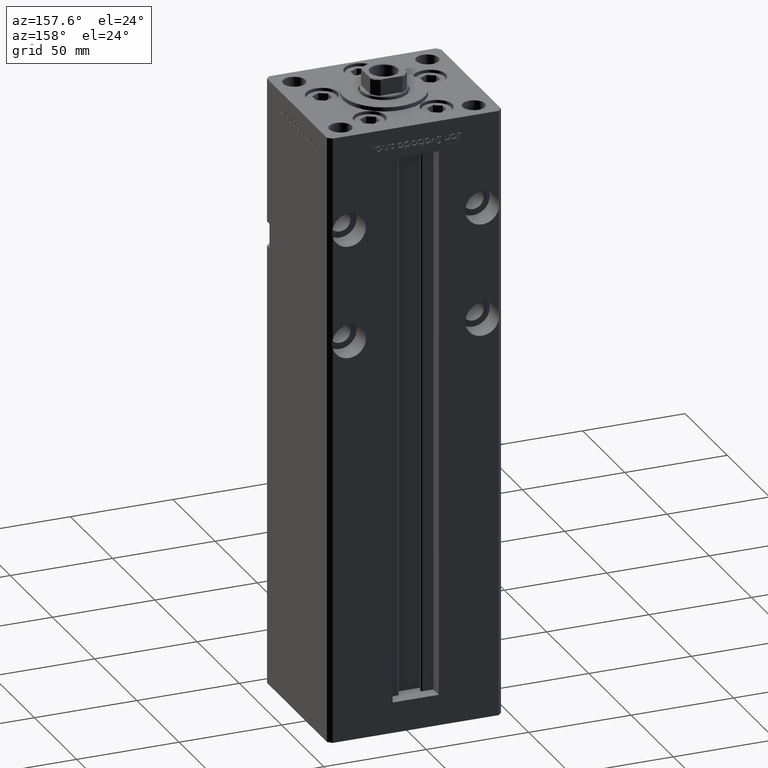
[diagram: clean part render]
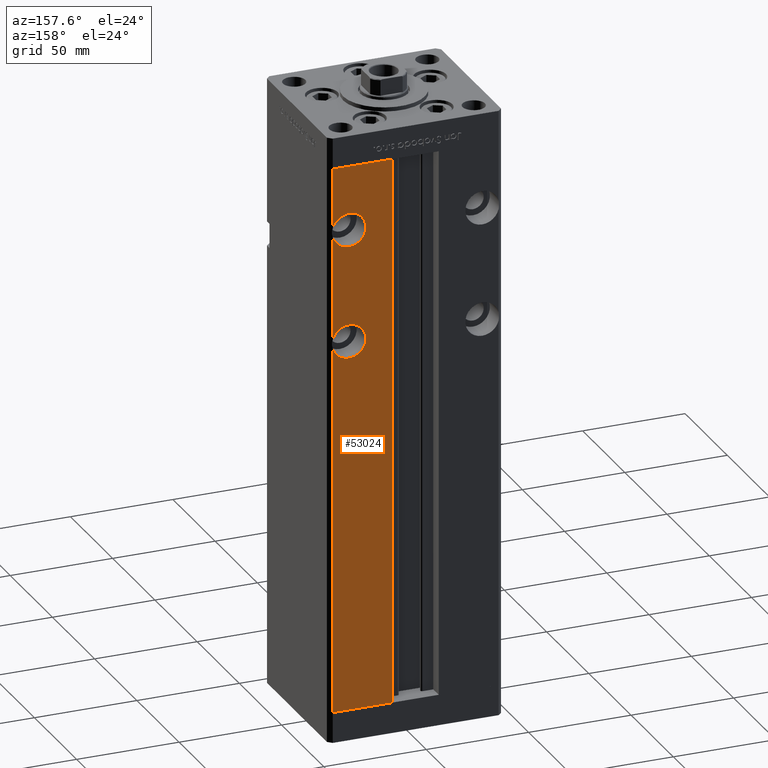
[diagram: same view with one face highlighted and labeled with its STEP entity id]
A machine part, auxiliary view. The second image highlights one B-rep face of the part: STEP entity #53024.
In plain terms, the highlighted planar face has unit normal (0, -1, 0).
Its self-contained STEP definition (entity closure, byte-faithful):
#370 = FACE_OUTER_BOUND ( 'NONE', #24508, .T. ) ;
#2520 = VECTOR ( 'NONE', #51217, 1000.000000000000000 ) ;
#3019 = ORIENTED_EDGE ( 'NONE', *, *, #19568, .F. ) ;
#3032 = CARTESIAN_POINT ( 'NONE',  ( 11.24999999999999822, 37.50000000000000000, 0.000000000000000000 ) ) ;
#3557 = CIRCLE ( 'NONE', #29319, 8.250000000000007105 ) ;
#4146 = EDGE_CURVE ( 'NONE', #35977, #35408, #26374, .T. ) ;
#4220 = CARTESIAN_POINT ( 'NONE',  ( 40.50000000000000711, 37.50000000000000000, 234.9844355629253698 ) ) ;
#4246 = VERTEX_POINT ( 'NONE', #35028 ) ;
#4905 = DIRECTION ( 'NONE',  ( 0.000000000000000000, -1.000000000000000000, 0.000000000000000000 ) ) ;
#5446 = CARTESIAN_POINT ( 'NONE',  ( -11.24999999999999822, 37.50000000000000000, 268.5000000000000000 ) ) ;
#5642 = VERTEX_POINT ( 'NONE', #4220 ) ;
#7545 = CIRCLE ( 'NONE', #45344, 8.250000000000007105 ) ;
#8544 = VERTEX_POINT ( 'NONE', #18215 ) ;
#9172 = AXIS2_PLACEMENT_3D ( 'NONE', #21890, #50915, #37479 ) ;
#9290 = CARTESIAN_POINT ( 'NONE',  ( -11.24999999999999822, 37.50000000000000000, 0.000000000000000000 ) ) ;
#10172 = ORIENTED_EDGE ( 'NONE', *, *, #43835, .F. ) ;
#10382 = EDGE_CURVE ( 'NONE', #4246, #34389, #34815, .T. ) ;
#10632 = CARTESIAN_POINT ( 'NONE',  ( 32.50000000000000000, 37.50000000000000000, 173.7500000000000284 ) ) ;
#10752 = EDGE_CURVE ( 'NONE', #34389, #46527, #40118, .T. ) ;
#10849 = DIRECTION ( 'NONE',  ( 0.000000000000000000, 0.000000000000000000, 1.000000000000000000 ) ) ;
#11786 = LINE ( 'NONE', #51866, #31745 ) ;
#11797 = ORIENTED_EDGE ( 'NONE', *, *, #4146, .F. ) ;
#12369 = DIRECTION ( 'NONE',  ( 0.000000000000000000, 1.000000000000000000, 0.000000000000000000 ) ) ;
#12975 = DIRECTION ( 'NONE',  ( 0.000000000000000000, -0.000000000000000000, -1.000000000000000000 ) ) ;
#16008 = CARTESIAN_POINT ( 'NONE',  ( 11.24999999999999112, 37.50000000000000000, 268.5000000000000000 ) ) ;
#16361 = AXIS2_PLACEMENT_3D ( 'NONE', #21470, #29021, #45401 ) ;
#17547 = EDGE_CURVE ( 'NONE', #25732, #31072, #44690, .T. ) ;
#17556 = LINE ( 'NONE', #18609, #43764 ) ;
#17677 = CARTESIAN_POINT ( 'NONE',  ( 40.50000000000000711, 37.50000000000000000, 239.0155644370746586 ) ) ;
#17723 = CIRCLE ( 'NONE', #36618, 8.250000000000007105 ) ;
#17867 = ORIENTED_EDGE ( 'NONE', *, *, #10752, .T. ) ;
#18128 = AXIS2_PLACEMENT_3D ( 'NONE', #5446, #4905, #12975 ) ;
#18215 = CARTESIAN_POINT ( 'NONE',  ( 32.50000000000000000, 37.50000000000000000, 190.2500000000000284 ) ) ;
#18609 = CARTESIAN_POINT ( 'NONE',  ( 40.50000000000000711, 37.50000000000000000, 268.5000000000000000 ) ) ;
#18782 = CARTESIAN_POINT ( 'NONE',  ( 32.50000000000000000, 37.50000000000000000, 182.0000000000000284 ) ) ;
#18878 = EDGE_CURVE ( 'NONE', #5642, #28079, #3557, .T. ) ;
#19460 = CARTESIAN_POINT ( 'NONE',  ( 40.50000000000000711, 37.50000000000000000, 184.0155644370746302 ) ) ;
#19568 = EDGE_CURVE ( 'NONE', #28079, #35977, #24173, .T. ) ;
#21178 = ORIENTED_EDGE ( 'NONE', *, *, #49360, .T. ) ;
#21470 = CARTESIAN_POINT ( 'NONE',  ( 32.50000000000000000, 37.50000000000000000, 182.0000000000000284 ) ) ;
#21779 = DIRECTION ( 'NONE',  ( 0.000000000000000000, 0.000000000000000000, 1.000000000000000000 ) ) ;
#21890 = CARTESIAN_POINT ( 'NONE',  ( 32.50000000000000000, 37.50000000000000000, 237.0000000000000284 ) ) ;
#22528 = CARTESIAN_POINT ( 'NONE',  ( 32.50000000000000000, 37.50000000000000000, 182.0000000000000284 ) ) ;
#22551 = VECTOR ( 'NONE', #33269, 1000.000000000000000 ) ;
#23047 = CARTESIAN_POINT ( 'NONE',  ( 32.50000000000000000, 37.50000000000000000, 228.7500000000000000 ) ) ;
#23437 = ORIENTED_EDGE ( 'NONE', *, *, #47541, .T. ) ;
#23686 = EDGE_CURVE ( 'NONE', #46527, #52869, #49933, .T. ) ;
#24173 = CIRCLE ( 'NONE', #30171, 8.250000000000007105 ) ;
#24508 = EDGE_LOOP ( 'NONE', ( #23437, #36332, #10172, #33443, #21178, #30229, #17867, #50293, #37467, #11797, #3019, #39261 ) ) ;
#25732 = VERTEX_POINT ( 'NONE', #38228 ) ;
#26374 = CIRCLE ( 'NONE', #9172, 8.250000000000007105 ) ;
#27519 = LINE ( 'NONE', #28578, #39802 ) ;
#28079 = VERTEX_POINT ( 'NONE', #23047 ) ;
#28578 = CARTESIAN_POINT ( 'NONE',  ( 40.50000000000000711, 37.50000000000000000, 268.5000000000000000 ) ) ;
#29021 = DIRECTION ( 'NONE',  ( 0.000000000000000000, 1.000000000000000000, -0.000000000000000000 ) ) ;
#29319 = AXIS2_PLACEMENT_3D ( 'NONE', #41407, #12369, #21779 ) ;
#30171 = AXIS2_PLACEMENT_3D ( 'NONE', #35865, #39363, #10849 ) ;
#30229 = ORIENTED_EDGE ( 'NONE', *, *, #10382, .T. ) ;
#31072 = VERTEX_POINT ( 'NONE', #10632 ) ;
#31545 = EDGE_CURVE ( 'NONE', #52869, #35408, #27519, .T. ) ;
#31745 = VECTOR ( 'NONE', #35736, 1000.000000000000000 ) ;
#32503 = DIRECTION ( 'NONE',  ( 0.000000000000000000, 0.000000000000000000, -1.000000000000000000 ) ) ;
#33269 = DIRECTION ( 'NONE',  ( 1.000000000000000000, 0.000000000000000000, 0.000000000000000000 ) ) ;
#33443 = ORIENTED_EDGE ( 'NONE', *, *, #17547, .F. ) ;
#33831 = DIRECTION ( 'NONE',  ( 0.000000000000000000, 0.000000000000000000, -1.000000000000000000 ) ) ;
#34389 = VERTEX_POINT ( 'NONE', #36724 ) ;
#34815 = LINE ( 'NONE', #9290, #2520 ) ;
#35028 = CARTESIAN_POINT ( 'NONE',  ( 40.50000000000000711, 37.50000000000000000, 0.000000000000000000 ) ) ;
#35408 = VERTEX_POINT ( 'NONE', #17677 ) ;
#35736 = DIRECTION ( 'NONE',  ( -0.000000000000000000, -0.000000000000000000, -1.000000000000000000 ) ) ;
#35865 = CARTESIAN_POINT ( 'NONE',  ( 32.50000000000000000, 37.50000000000000000, 237.0000000000000284 ) ) ;
#35977 = VERTEX_POINT ( 'NONE', #39520 ) ;
#36332 = ORIENTED_EDGE ( 'NONE', *, *, #39167, .F. ) ;
#36618 = AXIS2_PLACEMENT_3D ( 'NONE', #22528, #50764, #33831 ) ;
#36724 = CARTESIAN_POINT ( 'NONE',  ( 11.24999999999999822, 37.50000000000000000, 0.000000000000000000 ) ) ;
#37467 = ORIENTED_EDGE ( 'NONE', *, *, #31545, .T. ) ;
#37479 = DIRECTION ( 'NONE',  ( 0.000000000000000000, 0.000000000000000000, 1.000000000000000000 ) ) ;
#38228 = CARTESIAN_POINT ( 'NONE',  ( 40.50000000000000711, 37.50000000000000000, 179.9844355629254267 ) ) ;
#38591 = VECTOR ( 'NONE', #52227, 1000.000000000000000 ) ;
#39167 = EDGE_CURVE ( 'NONE', #8544, #50707, #17723, .T. ) ;
#39261 = ORIENTED_EDGE ( 'NONE', *, *, #18878, .F. ) ;
#39363 = DIRECTION ( 'NONE',  ( 0.000000000000000000, 1.000000000000000000, 0.000000000000000000 ) ) ;
#39520 = CARTESIAN_POINT ( 'NONE',  ( 32.50000000000000000, 37.50000000000000000, 245.2500000000000284 ) ) ;
#39802 = VECTOR ( 'NONE', #43910, 1000.000000000000000 ) ;
#40118 = LINE ( 'NONE', #3032, #38591 ) ;
#41085 = DIRECTION ( 'NONE',  ( 0.000000000000000000, 1.000000000000000000, -0.000000000000000000 ) ) ;
#41407 = CARTESIAN_POINT ( 'NONE',  ( 32.50000000000000000, 37.50000000000000000, 237.0000000000000284 ) ) ;
#43077 = DIRECTION ( 'NONE',  ( -0.000000000000000000, -0.000000000000000000, -1.000000000000000000 ) ) ;
#43764 = VECTOR ( 'NONE', #43077, 1000.000000000000000 ) ;
#43835 = EDGE_CURVE ( 'NONE', #31072, #8544, #7545, .T. ) ;
#43910 = DIRECTION ( 'NONE',  ( -0.000000000000000000, -0.000000000000000000, -1.000000000000000000 ) ) ;
#44690 = CIRCLE ( 'NONE', #16361, 8.250000000000007105 ) ;
#45108 = CARTESIAN_POINT ( 'NONE',  ( -11.24999999999999822, 37.50000000000000000, 268.5000000000000000 ) ) ;
#45344 = AXIS2_PLACEMENT_3D ( 'NONE', #18782, #41085, #32503 ) ;
#45401 = DIRECTION ( 'NONE',  ( 0.000000000000000000, 0.000000000000000000, -1.000000000000000000 ) ) ;
#46527 = VERTEX_POINT ( 'NONE', #16008 ) ;
#47541 = EDGE_CURVE ( 'NONE', #5642, #50707, #11786, .T. ) ;
#49360 = EDGE_CURVE ( 'NONE', #25732, #4246, #17556, .T. ) ;
#49822 = PLANE ( 'NONE',  #18128 ) ;
#49933 = LINE ( 'NONE', #45108, #22551 ) ;
#50293 = ORIENTED_EDGE ( 'NONE', *, *, #23686, .T. ) ;
#50707 = VERTEX_POINT ( 'NONE', #19460 ) ;
#50764 = DIRECTION ( 'NONE',  ( 0.000000000000000000, 1.000000000000000000, -0.000000000000000000 ) ) ;
#50915 = DIRECTION ( 'NONE',  ( 0.000000000000000000, 1.000000000000000000, 0.000000000000000000 ) ) ;
#51217 = DIRECTION ( 'NONE',  ( -1.000000000000000000, 0.000000000000000000, 0.000000000000000000 ) ) ;
#51866 = CARTESIAN_POINT ( 'NONE',  ( 40.50000000000000711, 37.50000000000000000, 268.5000000000000000 ) ) ;
#52227 = DIRECTION ( 'NONE',  ( -0.000000000000000000, -0.000000000000000000, 1.000000000000000000 ) ) ;
#52869 = VERTEX_POINT ( 'NONE', #53058 ) ;
#53024 = ADVANCED_FACE ( 'NONE', ( #370 ), #49822, .F. ) ;
#53058 = CARTESIAN_POINT ( 'NONE',  ( 40.50000000000000711, 37.50000000000000000, 268.5000000000000000 ) ) ;